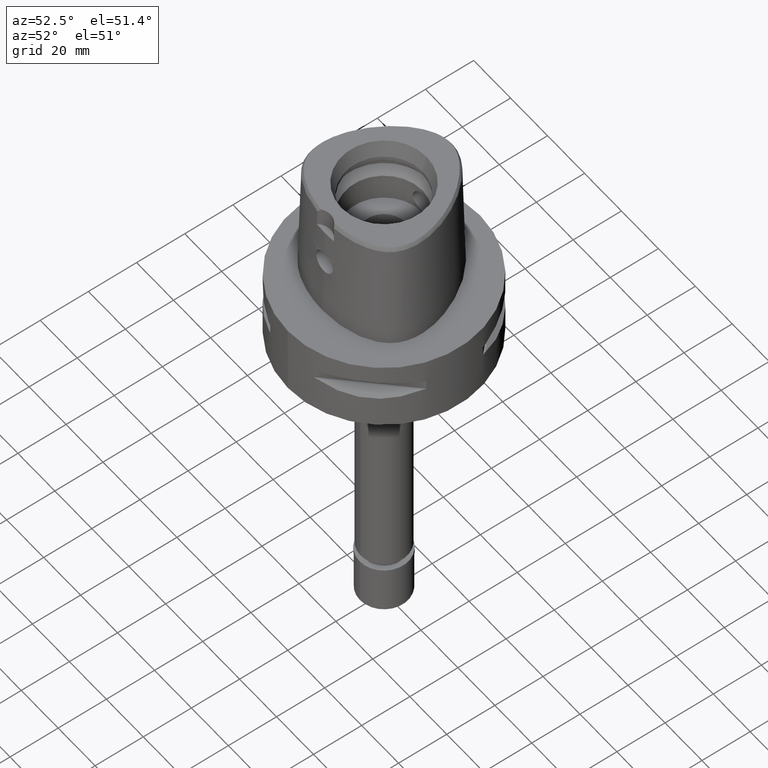
[diagram: clean part render]
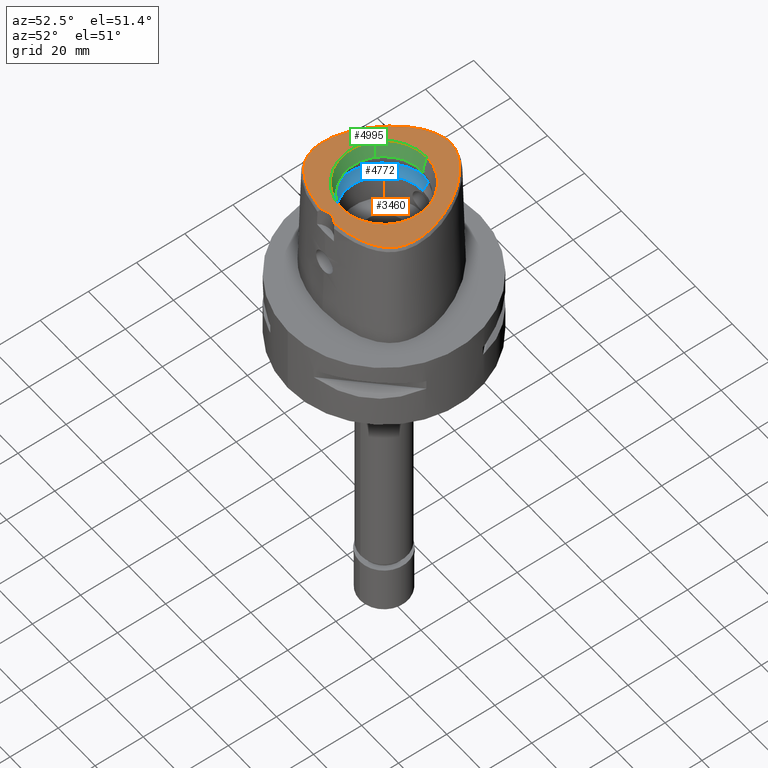
[diagram: same view with three faces highlighted in distinct colors, each labeled with its STEP entity id]
A machine part, auxiliary view with three faces highlighted in distinct colors.
Their STEP definitions:

[orange] entity #3460 — the highlighted planar face has unit normal (0, 0, 1).
#22 = AXIS2_PLACEMENT_3D ( 'NONE', #4750, #2772, #2821 ) ;
#30 = CARTESIAN_POINT ( 'NONE',  ( 0.6937438505404032174, 27.57019898700920635, 48.00000000000362377 ) ) ;
#78 = CARTESIAN_POINT ( 'NONE',  ( -17.07251349210442726, -19.90534504496524093, 47.99999989149591784 ) ) ;
#213 = CARTESIAN_POINT ( 'NONE',  ( -19.78446223016640104, 12.89029831088008038, 47.99999989150370538 ) ) ;
#306 = CARTESIAN_POINT ( 'NONE',  ( -18.95547948969381125, -18.80500692593734158, 47.99999989150676072 ) ) ;
#317 = CARTESIAN_POINT ( 'NONE',  ( 5.628119991152665591, -23.25222728396771643, 48.00000000000898126 ) ) ;
#323 = CARTESIAN_POINT ( 'NONE',  ( 24.00708073425844447, -13.59389763842576926, 48.00000000000693490 ) ) ;
#331 = CARTESIAN_POINT ( 'NONE',  ( -24.62272935222422987, -12.31262435361918328, 47.99999989149592494 ) ) ;
#343 = CARTESIAN_POINT ( 'NONE',  ( 17.07549476912265263, -19.90378693825343959, 48.00000000000355271 ) ) ;
#355 = CARTESIAN_POINT ( 'NONE',  ( 2.140583849881154688, 27.40603513869931973, 48.00000000000621725 ) ) ;
#362 = CARTESIAN_POINT ( 'NONE',  ( -18.05758775927269610, -19.36077720062089114, 47.99999989149313961 ) ) ;
#370 = AXIS2_PLACEMENT_3D ( 'NONE', #4049, #2572, #2945 ) ;
#385 = CARTESIAN_POINT ( 'NONE',  ( 5.331982176209002944, 26.48833275828565803, 48.00000000000198952 ) ) ;
#408 = CARTESIAN_POINT ( 'NONE',  ( 24.32795549673043922, -12.97211154200267558, 48.00000000000667910 ) ) ;
#486 = CARTESIAN_POINT ( 'NONE',  ( -24.32740981360710464, -12.97324847099333844, 47.99999989149578283 ) ) ;
#512 = CARTESIAN_POINT ( 'NONE',  ( -11.07816729751070817, 23.03133640522516501, 47.99999989150060742 ) ) ;
#532 = ORIENTED_EDGE ( 'NONE', *, *, #1530, .F. ) ;
#541 = CARTESIAN_POINT ( 'NONE',  ( -7.110865831381032010, 25.66222329675010982, 47.99999989150000346 ) ) ;
#546 = EDGE_CURVE ( 'NONE', #1584, #2296, #1437, .T. ) ;
#547 = ORIENTED_EDGE ( 'NONE', *, *, #2660, .F. ) ;
#585 = CARTESIAN_POINT ( 'NONE',  ( -17.68810264229924556, 16.01016823240935238, 47.99999989150422408 ) ) ;
#701 = CARTESIAN_POINT ( 'NONE',  ( -25.72853648140616656, -4.045150052245810812, 47.99999989149962687 ) ) ;
#706 = AXIS2_PLACEMENT_3D ( 'NONE', #3064, #1057, #4218 ) ;
#713 = CARTESIAN_POINT ( 'NONE',  ( 9.079666835764108157, -22.67647771863977724, 48.00000000001014655 ) ) ;
#729 = CARTESIAN_POINT ( 'NONE',  ( -4.354443967912917657, -23.38344545188073198, 47.99999989150436619 ) ) ;
#746 = CARTESIAN_POINT ( 'NONE',  ( 23.81116373423910204, 4.548397580874731005, 48.00000000000966338 ) ) ;
#776 = CARTESIAN_POINT ( 'NONE',  ( 2.897393261679801935, 27.25600202852693599, 48.00000000000159162 ) ) ;
#786 = CARTESIAN_POINT ( 'NONE',  ( -10.66374420217493757, -22.30593193418302889, 47.99999989150102664 ) ) ;
#813 = CARTESIAN_POINT ( 'NONE',  ( -22.82072897612429685, -15.36398919473836067, 47.99999989150038715 ) ) ;
#830 = CARTESIAN_POINT ( 'NONE',  ( -3.652518131678000213, -23.43984125287999731, 48.00000000000000000 ) ) ;
#831 = CARTESIAN_POINT ( 'NONE',  ( -2.553408000939000021E-11, 27.58331912251000162, 48.00000000000000000 ) ) ;
#906 = CARTESIAN_POINT ( 'NONE',  ( -0.2321695353053754851, 27.58331918330175014, 47.99999989150001056 ) ) ;
#934 = CARTESIAN_POINT ( 'NONE',  ( -9.027913678759981408, 24.52726124221398862, 47.99999989149834079 ) ) ;
#954 = EDGE_LOOP ( 'NONE', ( #5051, #3426, #1153 ) ) ;
#964 = CARTESIAN_POINT ( 'NONE',  ( -21.64189927739671759, 9.570126814347013067, 47.99999989149831947 ) ) ;
#989 = CARTESIAN_POINT ( 'NONE',  ( -6.203520504852582995, 26.11107310368173273, 47.99999989150142454 ) ) ;
#1009 = PLANE ( 'NONE',  #370 ) ;
#1057 = DIRECTION ( 'NONE',  ( 0.0000000000000000000, 0.0000000000000000000, 1.000000000000000000 ) ) ;
#1125 = CARTESIAN_POINT ( 'NONE',  ( -13.53666235760054981, -21.43297591055472040, 47.99999989149685575 ) ) ;
#1144 = CARTESIAN_POINT ( 'NONE',  ( 25.12949508357537098, -10.86427360166983114, 48.00000000000004974 ) ) ;
#1153 = ORIENTED_EDGE ( 'NONE', *, *, #2940, .F. ) ;
#1156 = CARTESIAN_POINT ( 'NONE',  ( -7.390055783630411490, -22.99586664605927311, 47.99999989149801394 ) ) ;
#1166 = CARTESIAN_POINT ( 'NONE',  ( 18.06021793802982600, -19.35923481219787945, 48.00000000000332534 ) ) ;
#1205 = CARTESIAN_POINT ( 'NONE',  ( 13.24267791555550211, 21.12418368643298905, 48.00000000000065370 ) ) ;
#1213 = CARTESIAN_POINT ( 'NONE',  ( -15.99341640724528979, -20.43562453270698143, 47.99999989150176560 ) ) ;
#1256 = CARTESIAN_POINT ( 'NONE',  ( 23.65541542674898423, -14.18997106324949264, 48.00000000001089973 ) ) ;
#1324 = CARTESIAN_POINT ( 'NONE',  ( -3.678923666163222084, 27.05630549679044705, 47.99999989149701207 ) ) ;
#1349 = CARTESIAN_POINT ( 'NONE',  ( 0.0000000000000000000, -28.19999999999999929, 48.00000000000000000 ) ) ;
#1402 = CARTESIAN_POINT ( 'NONE',  ( -16.58720419189031148, 17.44590654485687153, 47.99999989149461044 ) ) ;
#1437 = B_SPLINE_CURVE_WITH_KNOTS ( 'NONE', 3,
 ( #831, #2417, #30, #4368, #355, #776, #2365, #3139, #385, #3169, #1978, #2394, #2832, #3504, #2028, #3559, #1205, #2001, #1645, #4736, #2808, #4340, #4397, #5184, #3200, #4818, #5135, #746, #3953, #2785, #1615, #2755, #2336, #1950, #4417, #5160, #3613, #3111, #3921, #4001, #1144, #4313, #4764, #408, #323, #1256, #2309, #3892, #1919, #5105, #1536, #4712, #2730, #2053, #1166, #343, #3971, #3472, #5067, #4276, #3071, #713, #1942, #317, #3524, #5125, #1554 ),
 .UNSPECIFIED., .F., .F.,
 ( 4, 1, 1, 1, 1, 1, 1, 1, 1, 1, 1, 1, 1, 1, 1, 1, 1, 1, 1, 1, 1, 1, 1, 1, 1, 1, 1, 1, 1, 1, 1, 1, 1, 1, 1, 1, 1, 1, 1, 1, 1, 1, 1, 1, 1, 1, 1, 1, 1, 1, 1, 1, 1, 1, 1, 1, 1, 1, 1, 1, 1, 1, 1, 1, 4 ),
 ( 0.0000000000000000000, 0.01585579672639991777, 0.03171159345210006197, 0.04756739017779998413, 0.06342318690360004840, 0.07927898362929997056, 0.09513478035499989272, 0.1109905770807000369, 0.1268463738063999591, 0.1427021705320999923, 0.1585579672578999455, 0.1744137639835999787, 0.1902695607093000119, 0.2061253574349999340, 0.2219811541607000782, 0.2378369508864000004, 0.2536927476120999225, 0.2695485443380000179, 0.2854043410636999401, 0.3012601377893999732, 0.3171159345151000064, 0.3329717312407999286, 0.3488275279665000728, 0.3646833246923000260, 0.3805391214179999482, 0.3963949181436999813, 0.4122507148694000145, 0.4281065115951000477, 0.4439623083207999699, 0.4598181050465000030, 0.4756739017723000673, 0.4915296984979999895, 0.5073854952237000226, 0.5232412919494000558, 0.5390970886750999780, 0.5549528854007999001, 0.5708086821265999644, 0.5866644788522999976, 0.6025202755780000308, 0.6183760723036999529, 0.6342318690293999861, 0.6500876657551999394, 0.6659434624808999725, 0.6817992592067000368, 0.6976550559323999590, 0.7135108526580999921, 0.7293666493838000253, 0.7452224461095000585, 0.7610782428351999807, 0.7769340395610000449, 0.7927898362866999671, 0.8086456330124000003, 0.8245014297380999224, 0.8403572264637999556, 0.8562130231894999888, 0.8720688199152000220, 0.8879246166409999752, 0.9037804133667199924, 0.9196362100924300176, 0.9354920068181400428, 0.9513478035438499569, 0.9672036002695799661, 0.9830593969952899913, 0.9989151937210170029, 1.000000000000000000 ),
 .UNSPECIFIED. ) ;
#1530 = EDGE_CURVE ( 'NONE', #3146, #5048, #1961, .T. ) ;
#1536 = CARTESIAN_POINT ( 'NONE',  ( 21.18145661121376477, -17.09850743469857548, 47.99999999999761968 ) ) ;
#1543 = CARTESIAN_POINT ( 'NONE',  ( -24.89056295157689291, -11.61105476092678934, 47.99999989150295931 ) ) ;
#1554 = CARTESIAN_POINT ( 'NONE',  ( 3.652533226355999751, -23.43985283522000174, 48.00000000000000000 ) ) ;
#1570 = CARTESIAN_POINT ( 'NONE',  ( -24.34597377295150622, 2.947766337450648866, 47.99999989150754232 ) ) ;
#1584 = VERTEX_POINT ( 'NONE', #3876 ) ;
#1615 = CARTESIAN_POINT ( 'NONE',  ( 25.14129527416315213, -0.06715740301625955366, 48.00000000000396483 ) ) ;
#1642 = CIRCLE ( 'NONE', #22, 17.71487483155999954 ) ;
#1645 = CARTESIAN_POINT ( 'NONE',  ( 15.47311546589507003, 18.77848662925456225, 48.00000000000407141 ) ) ;
#1661 = FACE_OUTER_BOUND ( 'NONE', #954, .T. ) ;
#1740 = CARTESIAN_POINT ( 'NONE',  ( -2.139154079428692512, 27.40627714262287284, 47.99999989150738600 ) ) ;
#1763 = CARTESIAN_POINT ( 'NONE',  ( -15.47246039024258124, 18.77924036483362258, 47.99999989150028057 ) ) ;
#1770 = B_SPLINE_CURVE_WITH_KNOTS ( 'NONE', 3,
 ( #4774, #2401, #729, #4695, #1156, #3541, #786, #3898, #1125, #3930, #1213, #78, #362, #306, #4296, #2791, #3484, #3512, #4376, #813, #3660, #4055, #5113, #486, #331, #1543, #1928, #2765, #2075, #4266, #5143, #3119, #4660, #701, #2293, #4721, #3872, #1903, #1570, #2738, #3150, #4469, #964, #2928, #213, #3295, #585, #1402, #1763, #2552, #2127, #3346, #512, #4892, #934, #3710, #541, #989, #4549, #4974, #1324, #4919, #1740, #4524, #3757, #906, #3274 ),
 .UNSPECIFIED., .F., .F.,
 ( 4, 1, 1, 1, 1, 1, 1, 1, 1, 1, 1, 1, 1, 1, 1, 1, 1, 1, 1, 1, 1, 1, 1, 1, 1, 1, 1, 1, 1, 1, 1, 1, 1, 1, 1, 1, 1, 1, 1, 1, 1, 1, 1, 1, 1, 1, 1, 1, 1, 1, 1, 1, 1, 1, 1, 1, 1, 1, 1, 1, 1, 1, 1, 1, 4 ),
 ( 0.0000000000000000000, 0.001025268809822416343, 0.01688201057474578853, 0.03273875233976918792, 0.04859549410469278519, 0.06445223586961615347, 0.08030897763453952176, 0.09616571939946311209, 0.1120224611643864943, 0.1278792029294098798, 0.1437359446942334529, 0.1595926864591569461, 0.1754494282240803005, 0.1913061699890037937, 0.2071629117539272591, 0.2230196535188506413, 0.2388763952838741655, 0.2547331370487976310, 0.2705898788137210964, 0.2864466205786445063, 0.3023033623434679407, 0.3181601041083915171, 0.3340168458734149581, 0.3498735876383383125, 0.3657303294032617780, 0.3815870711681852434, 0.3974438129331087644, 0.4133005546980322298, 0.4291572964629555842, 0.4450140382279791362, 0.4608707799928025706, 0.4767275217577259250, 0.4925842635226494459, 0.5084410052875728558, 0.5242977470524964323, 0.5401544888175198178, 0.5560112305824432832, 0.5718679723473667487, 0.5877247141122901031, 0.6035814558771136484, 0.6194381976420371139, 0.6352949394069605793, 0.6511516811719840758, 0.6670084229369074302, 0.6828651647018308957, 0.6987219064667543611, 0.7145786482316777155, 0.7304353899966011809, 0.7462921317616247885, 0.7621488735264482228, 0.7780056152913716883, 0.7938623570562951537, 0.8097190988212185081, 0.8255758405861419735, 0.8414325823510654390, 0.8572893241160889355, 0.8731460658810124009, 0.8890028076459358664, 0.9048595494108192527, 0.9207162911757427182, 0.9365730329406761756, 0.9524297747055996410, 0.9682865164705330985, 0.9841432582354565639, 1.000000000000000000 ),
 .UNSPECIFIED. ) ;
#1903 = CARTESIAN_POINT ( 'NONE',  ( -24.78798707784890354, 1.406367717942012208, 47.99999989149883106 ) ) ;
#1919 = CARTESIAN_POINT ( 'NONE',  ( 22.33100613406905666, -15.94420923685717284, 48.00000000000833467 ) ) ;
#1928 = CARTESIAN_POINT ( 'NONE',  ( -25.12916467353128880, -10.86541652631729171, 47.99999989149641522 ) ) ;
#1942 = CARTESIAN_POINT ( 'NONE',  ( 7.396182376303213069, -22.99483633014257578, 48.00000000000311218 ) ) ;
#1950 = CARTESIAN_POINT ( 'NONE',  ( 25.72845965679392677, -4.044145215521718129, 48.00000000000983391 ) ) ;
#1961 = CIRCLE ( 'NONE', #706, 17.71487483155999954 ) ;
#1978 = CARTESIAN_POINT ( 'NONE',  ( 7.112111422625057244, 25.66156608519318638, 48.00000000000652278 ) ) ;
#2001 = CARTESIAN_POINT ( 'NONE',  ( 14.35433142683227636, 20.00604447574848876, 47.99999999999804601 ) ) ;
#2028 = CARTESIAN_POINT ( 'NONE',  ( 11.07918744941417266, 23.03051546725291843, 48.00000000000562039 ) ) ;
#2053 = CARTESIAN_POINT ( 'NONE',  ( 18.95779336837339102, -18.80349047535326434, 48.00000000000396483 ) ) ;
#2075 = CARTESIAN_POINT ( 'NONE',  ( -25.51017847210575340, -9.223923988783521821, 47.99999989150089164 ) ) ;
#2127 = CARTESIAN_POINT ( 'NONE',  ( -13.24182052360565720, 21.12501165368156464, 47.99999989149765156 ) ) ;
#2293 = CARTESIAN_POINT ( 'NONE',  ( -25.60527917837448086, -2.795135540819908559, 47.99999989150593649 ) ) ;
#2296 = VERTEX_POINT ( 'NONE', #5134 ) ;
#2309 = CARTESIAN_POINT ( 'NONE',  ( 23.26225374360419096, -14.77782433121501171, 48.00000000000577671 ) ) ;
#2336 = CARTESIAN_POINT ( 'NONE',  ( 25.60516200877603765, -2.794192459352767610, 47.99999999999874234 ) ) ;
#2365 = CARTESIAN_POINT ( 'NONE',  ( 3.680297990136054409, 27.05591354499561163, 48.00000000000596856 ) ) ;
#2394 = CARTESIAN_POINT ( 'NONE',  ( 8.053467330374960653, 25.13580020532184989, 47.99999999999926814 ) ) ;
#2401 = CARTESIAN_POINT ( 'NONE',  ( -3.692743043261493607, -23.43666984816137244, 47.99999989150183666 ) ) ;
#2417 = CARTESIAN_POINT ( 'NONE',  ( 0.2325907962420938890, 27.58331912251307472, 48.00000000000051159 ) ) ;
#2429 = VERTEX_POINT ( 'NONE', #830 ) ;
#2475 = CIRCLE ( 'NONE', #2704, 6.000000000000002665 ) ;
#2552 = CARTESIAN_POINT ( 'NONE',  ( -14.35357216529583901, 20.00684529597252492, 47.99999989149962687 ) ) ;
#2572 = DIRECTION ( 'NONE',  ( 0.0000000000000000000, 0.0000000000000000000, 1.000000000000000000 ) ) ;
#2660 = EDGE_CURVE ( 'NONE', #5048, #3146, #1642, .T. ) ;
#2704 = AXIS2_PLACEMENT_3D ( 'NONE', #1349, #4111, #4133 ) ;
#2724 = CARTESIAN_POINT ( 'NONE',  ( 0.0000000000000000000, -17.71487483155999954, 48.00000000000000000 ) ) ;
#2730 = CARTESIAN_POINT ( 'NONE',  ( 19.77345709183352085, -18.23990985540504894, 48.00000000000199663 ) ) ;
#2738 = CARTESIAN_POINT ( 'NONE',  ( -23.81131857989721112, 4.547972324548068990, 47.99999989149895896 ) ) ;
#2755 = CARTESIAN_POINT ( 'NONE',  ( 25.41171405094177160, -1.468769615953087859, 48.00000000000959943 ) ) ;
#2765 = CARTESIAN_POINT ( 'NONE',  ( -25.33661155868872683, -10.07113709945583224, 47.99999989150362012 ) ) ;
#2772 = DIRECTION ( 'NONE',  ( 0.0000000000000000000, 0.0000000000000000000, 1.000000000000000000 ) ) ;
#2785 = CARTESIAN_POINT ( 'NONE',  ( 24.78780591084688822, 1.407047860335187472, 47.99999999999914735 ) ) ;
#2791 = CARTESIAN_POINT ( 'NONE',  ( -20.51077227758284494, -17.67263106852649912, 47.99999989150250457 ) ) ;
#2808 = CARTESIAN_POINT ( 'NONE',  ( 17.68852893097775336, 16.00958332232391257, 48.00000000000519407 ) ) ;
#2821 = DIRECTION ( 'NONE',  ( 0.0000000000000000000, 1.000000000000000000, 0.0000000000000000000 ) ) ;
#2832 = CARTESIAN_POINT ( 'NONE',  ( 9.029067995420007264, 24.52649931749850509, 48.00000000000436273 ) ) ;
#2852 = FACE_BOUND ( 'NONE', #2874, .T. ) ;
#2857 = CARTESIAN_POINT ( 'NONE',  ( 0.0000000000000000000, 17.71487483155999954, 48.00000000000000000 ) ) ;
#2874 = EDGE_LOOP ( 'NONE', ( #532, #547 ) ) ;
#2890 = EDGE_CURVE ( 'NONE', #2429, #1584, #1770, .T. ) ;
#2928 = CARTESIAN_POINT ( 'NONE',  ( -20.74831943890272967, 11.24670205873345807, 47.99999989149952739 ) ) ;
#2940 = EDGE_CURVE ( 'NONE', #2296, #2429, #2475, .T. ) ;
#2945 = DIRECTION ( 'NONE',  ( 1.000000000000000000, 0.0000000000000000000, 0.0000000000000000000 ) ) ;
#3064 = CARTESIAN_POINT ( 'NONE',  ( 0.0000000000000000000, 0.0000000000000000000, 48.00000000000000000 ) ) ;
#3071 = CARTESIAN_POINT ( 'NONE',  ( 10.66892483387263546, -22.30459704282844413, 48.00000000001016076 ) ) ;
#3111 = CARTESIAN_POINT ( 'NONE',  ( 25.64658655008268084, -8.318518488027471847, 48.00000000000761702 ) ) ;
#3119 = CARTESIAN_POINT ( 'NONE',  ( -25.79049895553435334, -6.320436012649210511, 47.99999989149490887 ) ) ;
#3139 = CARTESIAN_POINT ( 'NONE',  ( 4.491298471527811031, 26.80158405531735966, 48.00000000000384404 ) ) ;
#3146 = VERTEX_POINT ( 'NONE', #2724 ) ;
#3150 = CARTESIAN_POINT ( 'NONE',  ( -23.18199744459232647, 6.194888204112080743, 47.99999989150172297 ) ) ;
#3169 = CARTESIAN_POINT ( 'NONE',  ( 6.204805495149402716, 26.11047595223816842, 48.00000000000397193 ) ) ;
#3200 = CARTESIAN_POINT ( 'NONE',  ( 21.64191216433252052, 9.570096010441774936, 48.00000000001001155 ) ) ;
#3274 = CARTESIAN_POINT ( 'NONE',  ( -2.553408000939000021E-11, 27.58331912251000162, 48.00000000000000000 ) ) ;
#3295 = CARTESIAN_POINT ( 'NONE',  ( -18.76020596345281888, 14.48413074766743058, 47.99999989150565938 ) ) ;
#3346 = CARTESIAN_POINT ( 'NONE',  ( -12.14717628349589518, 22.13270366863044813, 47.99999989150327195 ) ) ;
#3426 = ORIENTED_EDGE ( 'NONE', *, *, #2890, .F. ) ;
#3460 = ADVANCED_FACE ( 'NONE', ( #1661, #2852 ), #1009, .T. ) ;
#3472 = CARTESIAN_POINT ( 'NONE',  ( 14.81975810291364581, -20.94516920635197010, 48.00000000000779465 ) ) ;
#3484 = CARTESIAN_POINT ( 'NONE',  ( -21.17991842373654876, -17.09989885654993103, 47.99999989150487067 ) ) ;
#3504 = CARTESIAN_POINT ( 'NONE',  ( 10.03889926273904365, 23.82643791975435477, 48.00000000000918021 ) ) ;
#3512 = CARTESIAN_POINT ( 'NONE',  ( -21.78463115993357491, -16.52397196143611069, 47.99999989150108348 ) ) ;
#3524 = CARTESIAN_POINT ( 'NONE',  ( 4.358863301033962578, -23.38302754646676718, 48.00000000000281375 ) ) ;
#3541 = CARTESIAN_POINT ( 'NONE',  ( -9.073991149396388067, -22.67767910058935499, 47.99999989149851132 ) ) ;
#3559 = CARTESIAN_POINT ( 'NONE',  ( 12.14811716929732199, 22.13187320258779778, 47.99999999999660361 ) ) ;
#3613 = CARTESIAN_POINT ( 'NONE',  ( 25.74155027847670851, -7.352132003089709045, 48.00000000000568434 ) ) ;
#3660 = CARTESIAN_POINT ( 'NONE',  ( -23.26140421486363863, -14.77902315063040461, 47.99999989149964819 ) ) ;
#3710 = CARTESIAN_POINT ( 'NONE',  ( -8.052265373566976692, 25.13651240862367331, 47.99999989150181534 ) ) ;
#3757 = CARTESIAN_POINT ( 'NONE',  ( -0.6921675462052687688, 27.57027408821885217, 47.99999989150597912 ) ) ;
#3872 = CARTESIAN_POINT ( 'NONE',  ( -25.14146668157858500, -0.06794040014982977160, 47.99999989149997504 ) ) ;
#3876 = CARTESIAN_POINT ( 'NONE',  ( -2.553408000939000021E-11, 27.58331912251000162, 48.00000000000000000 ) ) ;
#3892 = CARTESIAN_POINT ( 'NONE',  ( 22.82172265263964661, -15.36274108902108004, 48.00000000000466827 ) ) ;
#3898 = CARTESIAN_POINT ( 'NONE',  ( -12.15213728770084778, -21.88854764585151713, 47.99999989150076374 ) ) ;
#3921 = CARTESIAN_POINT ( 'NONE',  ( 25.51037851176958426, -9.222789616918195321, 48.00000000001032419 ) ) ;
#3930 = CARTESIAN_POINT ( 'NONE',  ( -14.81597511675916756, -20.94671108371822754, 47.99999989150149560 ) ) ;
#3953 = CARTESIAN_POINT ( 'NONE',  ( 24.34579675530807918, 2.948329282944212704, 48.00000000001240608 ) ) ;
#3971 = CARTESIAN_POINT ( 'NONE',  ( 15.99678577414302083, -20.43406366493450577, 48.00000000000658673 ) ) ;
#4001 = CARTESIAN_POINT ( 'NONE',  ( 25.33687583872367100, -10.06999584063689213, 48.00000000000812861 ) ) ;
#4049 = CARTESIAN_POINT ( 'NONE',  ( 0.0000000000000000000, 0.0000000000000000000, 48.00000000000000000 ) ) ;
#4055 = CARTESIAN_POINT ( 'NONE',  ( -23.65469628751873188, -14.19111720709057245, 47.99999989149606705 ) ) ;
#4111 = DIRECTION ( 'NONE',  ( 0.0000000000000000000, 0.0000000000000000000, 1.000000000000000000 ) ) ;
#4133 = DIRECTION ( 'NONE',  ( 0.6087555377260667200, 0.7933578607966567109, 0.0000000000000000000 ) ) ;
#4218 = DIRECTION ( 'NONE',  ( 0.0000000000000000000, -1.000000000000000000, 0.0000000000000000000 ) ) ;
#4266 = CARTESIAN_POINT ( 'NONE',  ( -25.64644816634782387, -8.319642756808457662, 47.99999989150584412 ) ) ;
#4276 = CARTESIAN_POINT ( 'NONE',  ( 12.15683615294273423, -21.88711351950507833, 48.00000000000066791 ) ) ;
#4296 = CARTESIAN_POINT ( 'NONE',  ( -19.77143228740724368, -18.24138901681055103, 47.99999989150468593 ) ) ;
#4313 = CARTESIAN_POINT ( 'NONE',  ( 24.89096213678470093, -11.60991207239267098, 48.00000000000335376 ) ) ;
#4340 = CARTESIAN_POINT ( 'NONE',  ( 18.76051936065604764, 14.48366014233333487, 48.00000000000667200 ) ) ;
#4368 = CARTESIAN_POINT ( 'NONE',  ( 1.407937999593008138, 27.50970958195142657, 48.00000000000152056 ) ) ;
#4376 = CARTESIAN_POINT ( 'NONE',  ( -22.32985290023019687, -15.94550435142959621, 47.99999989150449409 ) ) ;
#4397 = CARTESIAN_POINT ( 'NONE',  ( 19.78466709480363050, 12.88995995782129533, 48.00000000000027711 ) ) ;
#4417 = CARTESIAN_POINT ( 'NONE',  ( 25.78811069501297482, -5.218135357747841319, 48.00000000000628830 ) ) ;
#4469 = CARTESIAN_POINT ( 'NONE',  ( -22.45665633755517376, 7.877471304893590265, 47.99999989149575441 ) ) ;
#4524 = CARTESIAN_POINT ( 'NONE',  ( -1.406513452560440358, 27.50987734486888669, 47.99999989150359880 ) ) ;
#4549 = CARTESIAN_POINT ( 'NONE',  ( -5.330667525987438538, 26.48886324098999978, 47.99999989149751656 ) ) ;
#4660 = CARTESIAN_POINT ( 'NONE',  ( -25.78814006160985528, -5.219183130497357048, 47.99999989149893054 ) ) ;
#4695 = CARTESIAN_POINT ( 'NONE',  ( -5.621443929429106312, -23.25305014163988204, 47.99999989150046531 ) ) ;
#4712 = CARTESIAN_POINT ( 'NONE',  ( 20.51253914625522157, -17.67119446946006178, 48.00000000000242295 ) ) ;
#4721 = CARTESIAN_POINT ( 'NONE',  ( -25.41186340289127799, -1.469639842575093391, 47.99999989150271062 ) ) ;
#4736 = CARTESIAN_POINT ( 'NONE',  ( 16.58774972841521844, 17.44522137221680680, 48.00000000001074341 ) ) ;
#4750 = CARTESIAN_POINT ( 'NONE',  ( 0.0000000000000000000, 0.0000000000000000000, 48.00000000000000000 ) ) ;
#4764 = CARTESIAN_POINT ( 'NONE',  ( 24.62320007857139359, -12.31148373401088492, 48.00000000000435563 ) ) ;
#4774 = CARTESIAN_POINT ( 'NONE',  ( -3.652518131678000213, -23.43984125287999731, 48.00000000000000000 ) ) ;
#4818 = CARTESIAN_POINT ( 'NONE',  ( 22.45659887780543684, 7.877591736060724159, 48.00000000000449063 ) ) ;
#4892 = CARTESIAN_POINT ( 'NONE',  ( -10.03780482748684832, 23.82723756442843310, 47.99999989150419566 ) ) ;
#4919 = CARTESIAN_POINT ( 'NONE',  ( -2.895995696991939816, 27.25632074975433028, 47.99999989149826263 ) ) ;
#4974 = CARTESIAN_POINT ( 'NONE',  ( -4.489954072261014062, 26.80204645006903164, 47.99999989150096980 ) ) ;
#5048 = VERTEX_POINT ( 'NONE', #2857 ) ;
#5051 = ORIENTED_EDGE ( 'NONE', *, *, #546, .F. ) ;
#5067 = CARTESIAN_POINT ( 'NONE',  ( 13.54089058450294125, -21.43147460488620482, 48.00000000000666489 ) ) ;
#5105 = CARTESIAN_POINT ( 'NONE',  ( 21.78596494080863621, -16.52262878099901400, 47.99999999999712230 ) ) ;
#5113 = CARTESIAN_POINT ( 'NONE',  ( -24.00645948965406262, -13.59502452684054319, 47.99999989150590807 ) ) ;
#5125 = CARTESIAN_POINT ( 'NONE',  ( 3.695072017992981905, -23.43648746218688572, 48.00000000000133582 ) ) ;
#5134 = CARTESIAN_POINT ( 'NONE',  ( 3.652533226355999751, -23.43985283522000174, 48.00000000000000000 ) ) ;
#5135 = CARTESIAN_POINT ( 'NONE',  ( 23.18188527997854820, 6.195157684106738394, 47.99999999999682387 ) ) ;
#5143 = CARTESIAN_POINT ( 'NONE',  ( -25.74147111944579436, -7.353240452850346109, 47.99999989150012425 ) ) ;
#5160 = CARTESIAN_POINT ( 'NONE',  ( 25.79052179445077186, -6.319355031380188947, 48.00000000000984812 ) ) ;
#5184 = CARTESIAN_POINT ( 'NONE',  ( 20.74842146925316655, 11.24651447313639707, 48.00000000000976286 ) ) ;

[blue] entity #4772 — the highlighted conical surface has half-angle 45 deg.
#27 = AXIS2_PLACEMENT_3D ( 'NONE', #4625, #292, #3806 ) ;
#82 = EDGE_LOOP ( 'NONE', ( #3901, #4651, #3611, #3588 ) ) ;
#136 = LINE ( 'NONE', #2533, #3337 ) ;
#292 = DIRECTION ( 'NONE',  ( 0.0000000000000000000, 0.0000000000000000000, 1.000000000000000000 ) ) ;
#392 = CARTESIAN_POINT ( 'NONE',  ( 0.0000000000000000000, 16.00000000000000000, 31.50000000000000000 ) ) ;
#427 = VECTOR ( 'NONE', #470, 1000.000000000000114 ) ;
#470 = DIRECTION ( 'NONE',  ( 0.0000000000000000000, 0.7071067811865474617, 0.7071067811865474617 ) ) ;
#591 = FACE_OUTER_BOUND ( 'NONE', #82, .T. ) ;
#1253 = VERTEX_POINT ( 'NONE', #4645 ) ;
#1355 = VERTEX_POINT ( 'NONE', #3749 ) ;
#1682 = AXIS2_PLACEMENT_3D ( 'NONE', #4140, #3301, #4499 ) ;
#1896 = VERTEX_POINT ( 'NONE', #3403 ) ;
#2345 = DIRECTION ( 'NONE',  ( 0.0000000000000000000, -1.000000000000000000, 0.0000000000000000000 ) ) ;
#2372 = DIRECTION ( 'NONE',  ( 0.0000000000000000000, 0.0000000000000000000, -1.000000000000000000 ) ) ;
#2533 = CARTESIAN_POINT ( 'NONE',  ( 0.0000000000000000000, -16.00000000000000000, 31.50000000000000000 ) ) ;
#2842 = CONICAL_SURFACE ( 'NONE', #1682, 17.50000000000000000, 0.7853981633972997312 ) ;
#2881 = EDGE_CURVE ( 'NONE', #1253, #1355, #3216, .T. ) ;
#3001 = CARTESIAN_POINT ( 'NONE',  ( 0.0000000000000000000, -16.00000000000000000, 31.50000000000000000 ) ) ;
#3063 = VERTEX_POINT ( 'NONE', #3001 ) ;
#3090 = CARTESIAN_POINT ( 'NONE',  ( 0.0000000000000000000, 0.0000000000000000000, 34.50000000000000000 ) ) ;
#3191 = EDGE_CURVE ( 'NONE', #1896, #3063, #4196, .T. ) ;
#3216 = CIRCLE ( 'NONE', #5041, 19.00000000000000000 ) ;
#3301 = DIRECTION ( 'NONE',  ( 0.0000000000000000000, 0.0000000000000000000, 1.000000000000000000 ) ) ;
#3337 = VECTOR ( 'NONE', #3767, 1000.000000000000114 ) ;
#3403 = CARTESIAN_POINT ( 'NONE',  ( 0.0000000000000000000, 16.00000000000000000, 31.50000000000000000 ) ) ;
#3588 = ORIENTED_EDGE ( 'NONE', *, *, #4814, .F. ) ;
#3611 = ORIENTED_EDGE ( 'NONE', *, *, #2881, .F. ) ;
#3749 = CARTESIAN_POINT ( 'NONE',  ( 0.0000000000000000000, 19.00000000000000000, 34.50000000000000000 ) ) ;
#3767 = DIRECTION ( 'NONE',  ( 0.0000000000000000000, -0.7071067811865474617, 0.7071067811865474617 ) ) ;
#3806 = DIRECTION ( 'NONE',  ( 0.0000000000000000000, 1.000000000000000000, 0.0000000000000000000 ) ) ;
#3901 = ORIENTED_EDGE ( 'NONE', *, *, #3191, .F. ) ;
#4140 = CARTESIAN_POINT ( 'NONE',  ( 0.0000000000000000000, 0.0000000000000000000, 33.00000000000000000 ) ) ;
#4196 = CIRCLE ( 'NONE', #27, 16.00000000000000000 ) ;
#4429 = LINE ( 'NONE', #392, #427 ) ;
#4499 = DIRECTION ( 'NONE',  ( 0.0000000000000000000, 1.000000000000000000, 0.0000000000000000000 ) ) ;
#4625 = CARTESIAN_POINT ( 'NONE',  ( 0.0000000000000000000, 0.0000000000000000000, 31.50000000000000000 ) ) ;
#4645 = CARTESIAN_POINT ( 'NONE',  ( 0.0000000000000000000, -19.00000000000000000, 34.50000000000000000 ) ) ;
#4651 = ORIENTED_EDGE ( 'NONE', *, *, #4670, .T. ) ;
#4670 = EDGE_CURVE ( 'NONE', #1896, #1355, #4429, .T. ) ;
#4772 = ADVANCED_FACE ( 'NONE', ( #591 ), #2842, .F. ) ;
#4814 = EDGE_CURVE ( 'NONE', #3063, #1253, #136, .T. ) ;
#5041 = AXIS2_PLACEMENT_3D ( 'NONE', #3090, #2372, #2345 ) ;

[green] entity #4995 — the highlighted conical surface has half-angle 15 deg.
#22 = AXIS2_PLACEMENT_3D ( 'NONE', #4750, #2772, #2821 ) ;
#141 = EDGE_CURVE ( 'NONE', #2883, #853, #3010, .T. ) ;
#265 = DIRECTION ( 'NONE',  ( 0.0000000000000000000, 1.000000000000000000, 0.0000000000000000000 ) ) ;
#518 = AXIS2_PLACEMENT_3D ( 'NONE', #2649, #4227, #265 ) ;
#853 = VERTEX_POINT ( 'NONE', #1298 ) ;
#1120 = ORIENTED_EDGE ( 'NONE', *, *, #2660, .T. ) ;
#1207 = DIRECTION ( 'NONE',  ( 0.0000000000000000000, 1.000000000000000000, 0.0000000000000000000 ) ) ;
#1217 = EDGE_CURVE ( 'NONE', #2883, #5048, #2359, .T. ) ;
#1298 = CARTESIAN_POINT ( 'NONE',  ( 0.0000000000000000000, -16.00000000000000000, 41.60000000000000142 ) ) ;
#1509 = VECTOR ( 'NONE', #1650, 1000.000000000000000 ) ;
#1577 = DIRECTION ( 'NONE',  ( 0.0000000000000000000, 0.2588190451025869088, 0.9659258262890505486 ) ) ;
#1626 = EDGE_LOOP ( 'NONE', ( #3354, #2835, #4939, #1120 ) ) ;
#1642 = CIRCLE ( 'NONE', #22, 17.71487483155999954 ) ;
#1650 = DIRECTION ( 'NONE',  ( 0.0000000000000000000, -0.2588190451025869088, 0.9659258262890505486 ) ) ;
#1985 = CARTESIAN_POINT ( 'NONE',  ( 0.0000000000000000000, 16.00000000000000000, 41.60000000000000142 ) ) ;
#2359 = LINE ( 'NONE', #5151, #3192 ) ;
#2649 = CARTESIAN_POINT ( 'NONE',  ( 0.0000000000000000000, 0.0000000000000000000, 41.60000000000000142 ) ) ;
#2660 = EDGE_CURVE ( 'NONE', #5048, #3146, #1642, .T. ) ;
#2724 = CARTESIAN_POINT ( 'NONE',  ( 0.0000000000000000000, -17.71487483155999954, 48.00000000000000000 ) ) ;
#2772 = DIRECTION ( 'NONE',  ( 0.0000000000000000000, 0.0000000000000000000, 1.000000000000000000 ) ) ;
#2821 = DIRECTION ( 'NONE',  ( 0.0000000000000000000, 1.000000000000000000, 0.0000000000000000000 ) ) ;
#2835 = ORIENTED_EDGE ( 'NONE', *, *, #141, .F. ) ;
#2857 = CARTESIAN_POINT ( 'NONE',  ( 0.0000000000000000000, 17.71487483155999954, 48.00000000000000000 ) ) ;
#2883 = VERTEX_POINT ( 'NONE', #1985 ) ;
#3010 = CIRCLE ( 'NONE', #518, 16.00000000000000000 ) ;
#3146 = VERTEX_POINT ( 'NONE', #2724 ) ;
#3192 = VECTOR ( 'NONE', #1577, 1000.000000000000000 ) ;
#3247 = CARTESIAN_POINT ( 'NONE',  ( 0.0000000000000000000, 0.0000000000000000000, 44.79999999999999716 ) ) ;
#3253 = CARTESIAN_POINT ( 'NONE',  ( 0.0000000000000000000, -16.00000000000000000, 41.60000000000000142 ) ) ;
#3354 = ORIENTED_EDGE ( 'NONE', *, *, #4579, .F. ) ;
#4227 = DIRECTION ( 'NONE',  ( 0.0000000000000000000, 0.0000000000000000000, 1.000000000000000000 ) ) ;
#4244 = CONICAL_SURFACE ( 'NONE', #5087, 16.85743741578000154, 0.2617993877991000029 ) ;
#4341 = DIRECTION ( 'NONE',  ( 0.0000000000000000000, 0.0000000000000000000, 1.000000000000000000 ) ) ;
#4375 = LINE ( 'NONE', #3253, #1509 ) ;
#4579 = EDGE_CURVE ( 'NONE', #853, #3146, #4375, .T. ) ;
#4750 = CARTESIAN_POINT ( 'NONE',  ( 0.0000000000000000000, 0.0000000000000000000, 48.00000000000000000 ) ) ;
#4939 = ORIENTED_EDGE ( 'NONE', *, *, #1217, .T. ) ;
#4995 = ADVANCED_FACE ( 'NONE', ( #5137 ), #4244, .F. ) ;
#5048 = VERTEX_POINT ( 'NONE', #2857 ) ;
#5087 = AXIS2_PLACEMENT_3D ( 'NONE', #3247, #4341, #1207 ) ;
#5137 = FACE_OUTER_BOUND ( 'NONE', #1626, .T. ) ;
#5151 = CARTESIAN_POINT ( 'NONE',  ( 0.0000000000000000000, 16.00000000000000000, 41.60000000000000142 ) ) ;